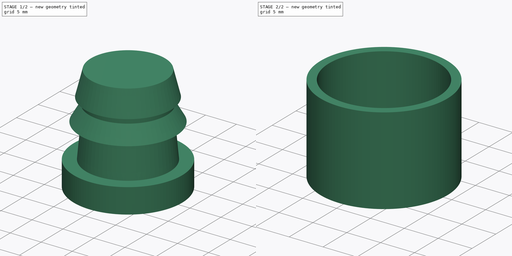
[diagram: build sequence overview — one tinted view per stage of 2, left to right]
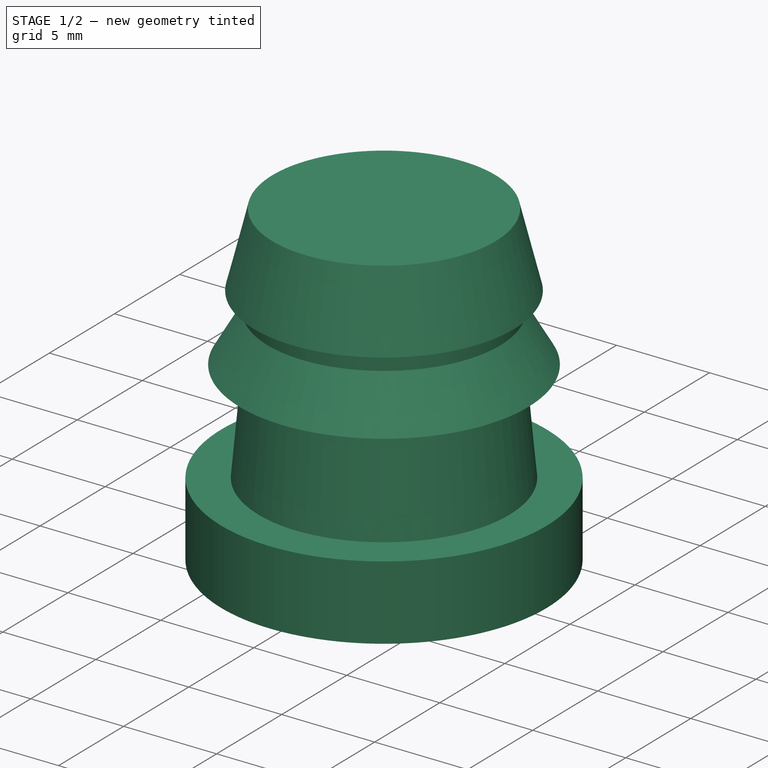
[diagram: stage 1 of 2 — iso view after this stage's code; geometry added in this stage tinted green]
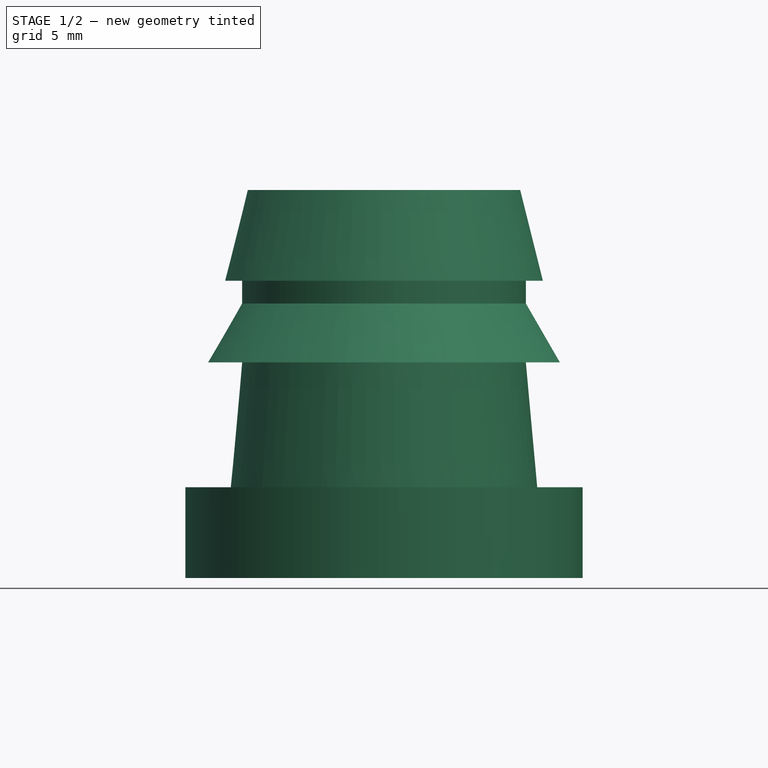
[diagram: stage 1 of 2 — front view after this stage's code; geometry added in this stage tinted green]
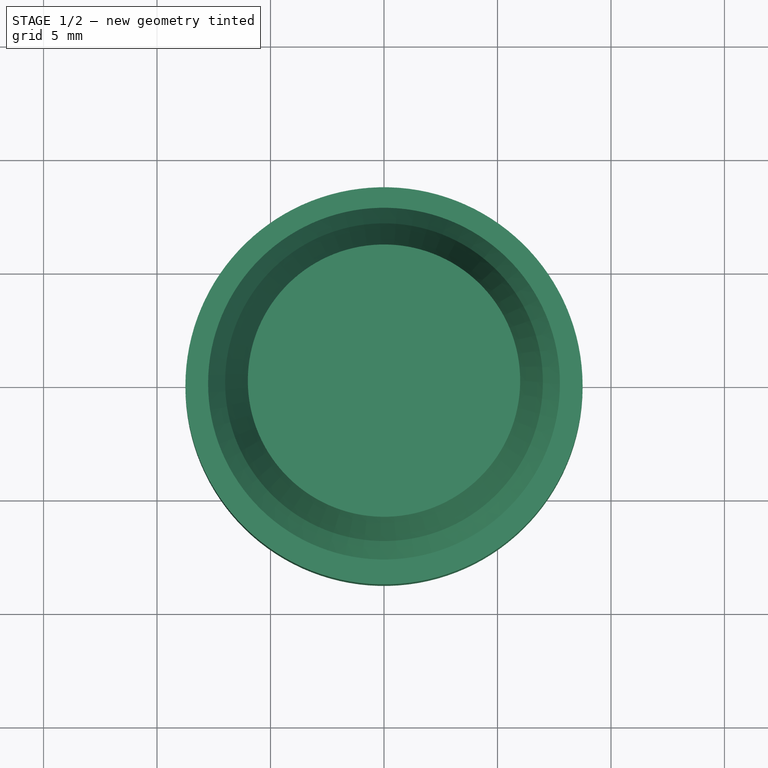
[diagram: stage 1 of 2 — top view after this stage's code; geometry added in this stage tinted green]
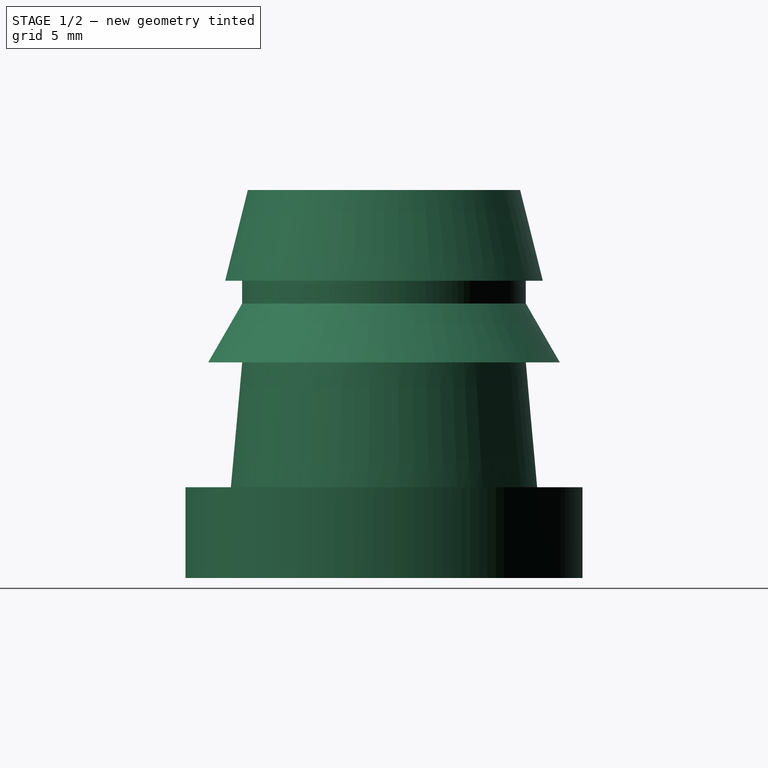
[diagram: stage 1 of 2 — right view after this stage's code; geometry added in this stage tinted green]
FCSTD DOCUMENT  (FreeCAD 2022.430R28641 (Git))
Label: zakljucek kapljicne cevi
License: All rights reserved
LicenseURL: http://en.wikipedia.org/wiki/All_rights_reserved
objects: Sketcher::SketchObject×3, PartDesign::Body×2, PartDesign::SubShapeBinder×2, PartDesign::Revolution×1, PartDesign::Pad×1
note: 13 computed .brp shape members not serialized (recipe doc carries the construction recipe); baked Part::Feature solids carry a one-line shape summary decoded from their .brp

FEATURE [Sketcher::SketchObject] Sketch
  FullyConstrained = true
  MapMode = 5
  Placement = pos=(0,0,0) rot=(1,0,0;1.5708rad)
  Support = -> [XZ_Plane]
  TreeRank = 13
  expr: Constraints[24] = 15.5 / 2
  expr: Constraints[28] = 14mm / 2
  expr: Constraints[2] = 17.5mm / 2
  expr: Constraints[30] = 12mm / 2
  sketch-geometry (11):
    g0: LineSegment StartX=8.75 StartY=0 StartZ=0 EndX=8.75 EndY=4 EndZ=0
    g1: LineSegment StartX=8.75 StartY=4 StartZ=0 EndX=6.75 EndY=4 EndZ=0
    g2: LineSegment StartX=6.75 StartY=4 StartZ=0 EndX=6.25 EndY=9.5 EndZ=0
    g3: LineSegment StartX=6.25 StartY=9.5 StartZ=0 EndX=7.75 EndY=9.5 EndZ=0
    g4: LineSegment StartX=7.75 StartY=9.5 StartZ=0 EndX=6.25 EndY=12.0981 EndZ=0
    g5: LineSegment StartX=6.25 StartY=12.0981 StartZ=0 EndX=6.25 EndY=13.0981 EndZ=0
    g6: LineSegment StartX=6.25 StartY=13.0981 StartZ=0 EndX=7 EndY=13.0981 EndZ=0
    g7: LineSegment StartX=7 StartY=13.0981 StartZ=0 EndX=6 EndY=17.0981 EndZ=0
    g8: LineSegment StartX=6 StartY=17.0981 StartZ=0 EndX=0 EndY=17.0981 EndZ=0
    g9: LineSegment StartX=0 StartY=17.0981 StartZ=0 EndX=0 EndY=0 EndZ=0
    g10: LineSegment StartX=0 StartY=0 StartZ=0 EndX=8.75 EndY=0 EndZ=0
  constraints (32):
    c: PointOnObject(g0,g-1)
    c: Vertical(g0)
    c: DistanceX(g0) = 8.75
    c: Coincident(g0,g1)
    c: Coincident(g1,g2)
    c: Coincident(g2,g3)
    c: Coincident(g3,g4)
    c: Coincident(g4,g5)
    c: Vertical(g5)
    c: Coincident(g5,g6)
    c: Coincident(g6,g7)
    c: Coincident(g7,g8)
    c: PointOnObject(g8,g-2)
    c: Horizontal(g8)
    c: Coincident(g8,g9)
    c: Coincident(g9,g-1)
    c: Coincident(g9,g10)
    c: Coincident(g10,g0)
    c: DistanceY(g0,g0) = 4
    c: DistanceY(g2,g2) = 5.5
    c: Horizontal(g1)
    c: Horizontal(g3)
    c: Horizontal(g6)
    c: DistanceX(g1,g1) = 2
    c: DistanceX(g3) = 7.75
    c: Vertical(g4,g2)
    c: Angle(g4) = 2.0944
    c: DistanceY(g5,g5) = 1
    c: DistanceX(g6) = 7
    c: DistanceY(g5,g7) = 4
    c: DistanceX(g7) = 6
    c: DistanceX(g3,g3) = 1.5
FEATURE [PartDesign::Revolution] Revolution
  Angle = 360
  Axis = (0,-2e-16,1)
  Base = (0,0,0)
  ClaimChildren = false
  Fit = 0
  FitJoin = 0
  InnerFit = 0
  InnerFitJoin = 0
  NewSolid = false
  Placement = pos=(0,0,0) rot=(1,0,0;1.5708rad)
  Profile = -> Sketch
  ReferenceAxis = -> Sketch [V_Axis]
  Refine = true
  Reversed = true
  Suppress = false
  TreeRank = 14
  _ProfileBasedVersion = 1
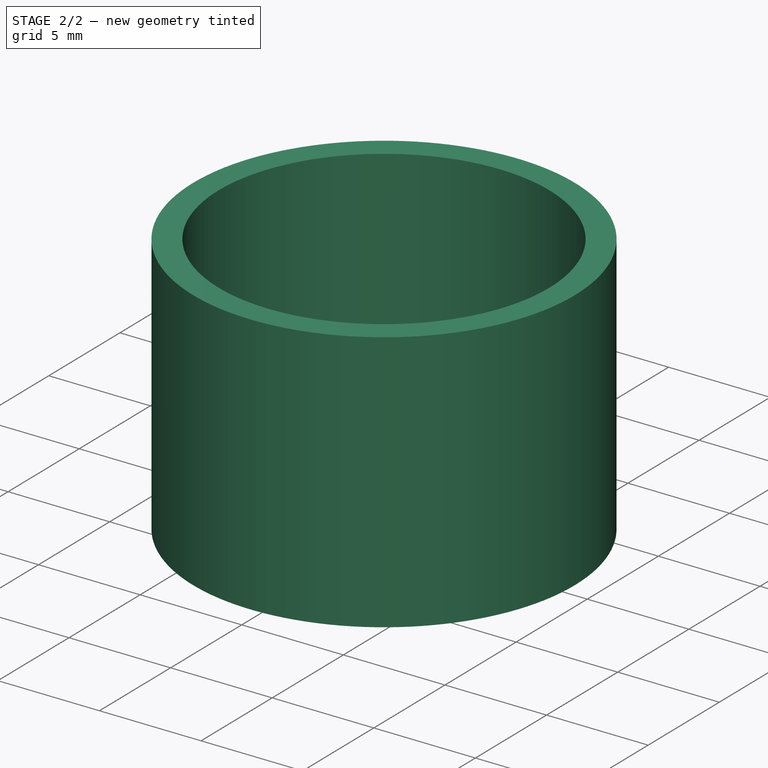
[diagram: stage 2 of 2 — iso view after this stage's code; geometry added in this stage tinted green]
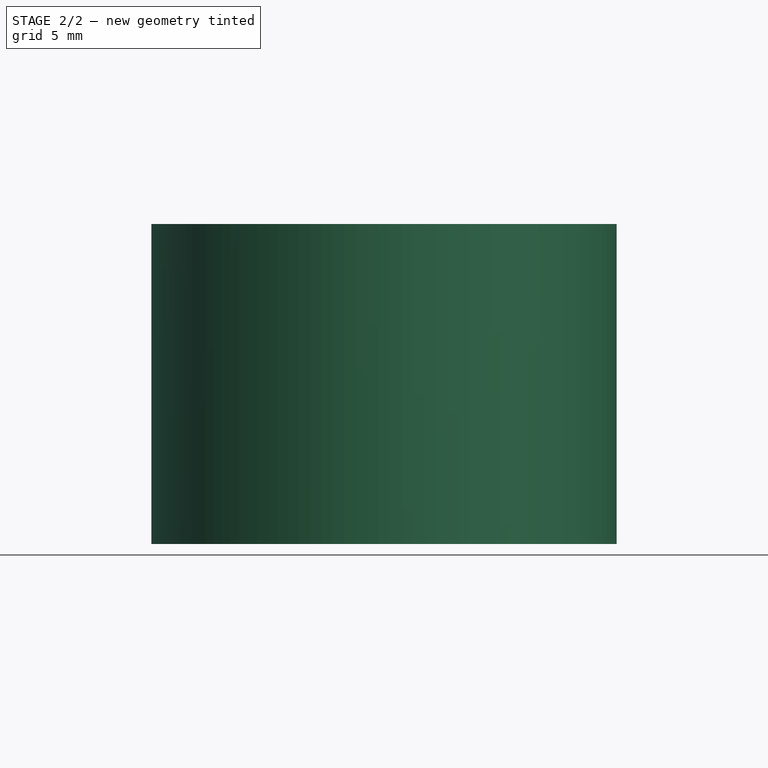
[diagram: stage 2 of 2 — front view after this stage's code; geometry added in this stage tinted green]
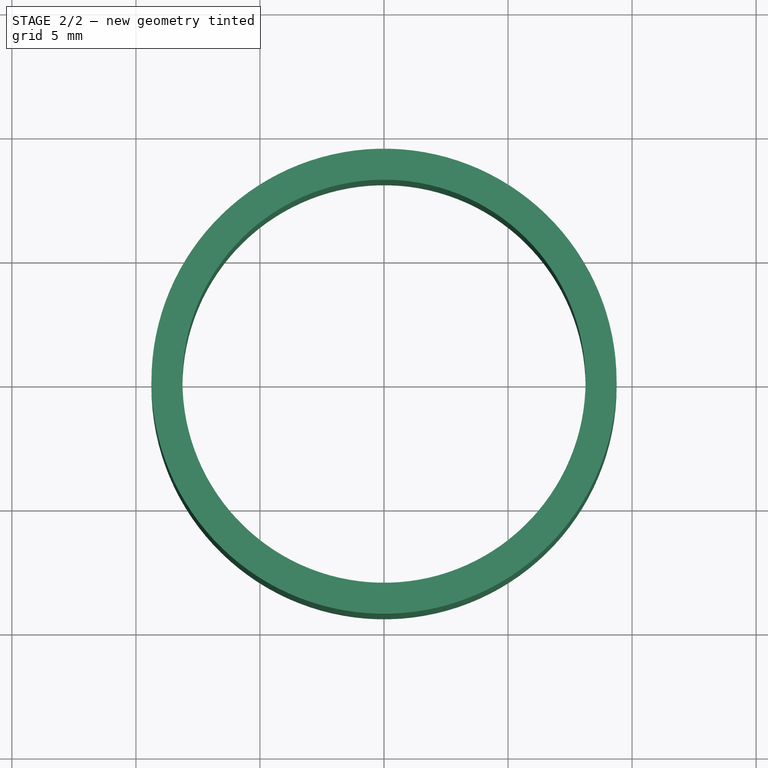
[diagram: stage 2 of 2 — top view after this stage's code; geometry added in this stage tinted green]
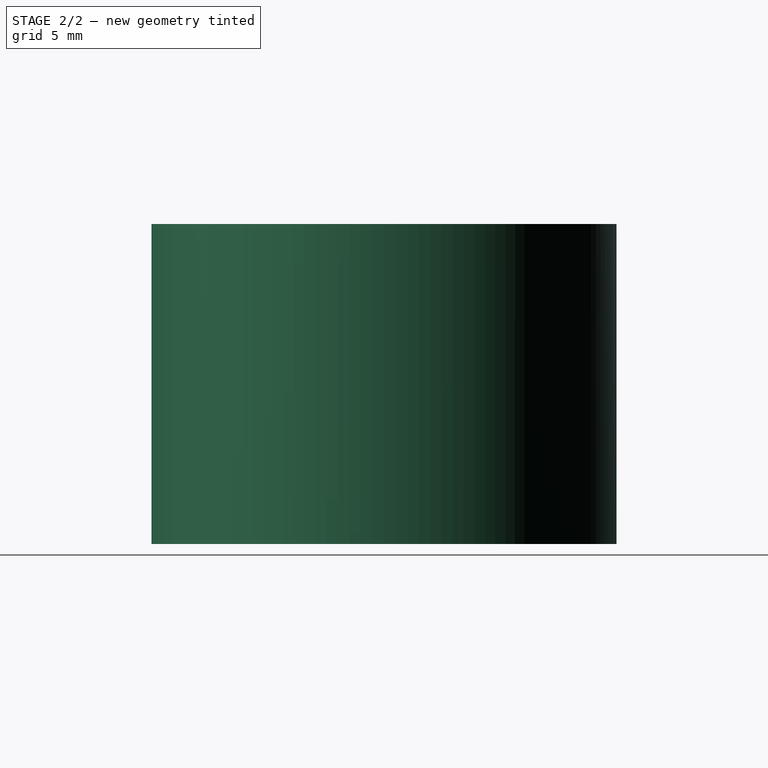
[diagram: stage 2 of 2 — right view after this stage's code; geometry added in this stage tinted green]
FEATURE [PartDesign::Body] Body
  AutoGroupSolids = false
  ClaimAllChildren = false
  ExportMode = 0
  Group = -> [Sketch,Revolution]
  Origin = -> Origin
  Tip = -> Revolution
  TreeRank = 42
  _ExportChildren = -> [Revolution]
  _GroupVersion = 1
FEATURE [PartDesign::SubShapeBinder] Binder  label="Binder(Revolution)"
  BindCopyOnChange = 0
  BindMode = 0
  ClaimChildren = false
  Context = -> Body001 [Binder.]
  FillStyle = 0
  Fuse = false
  MakeFace = true
  PartialLoad = false
  Relative = true
  Support = -> [Body[Revolution.Face9]]
  TreeRank = 27
  _Version = 8
FEATURE [PartDesign::SubShapeBinder] Binder001  label="Binder001(Revolution)"
  BindCopyOnChange = 0
  BindMode = 0
  ClaimChildren = false
  Context = -> Body001 [Binder001.]
  FillStyle = 0
  Fuse = false
  MakeFace = true
  PartialLoad = false
  Relative = true
  Support = -> [Body[Revolution.Face2]]
  TreeRank = 28
  _Version = 8
FEATURE [Sketcher::SketchObject] Sketch001
  ExternalGeometry = -> [Binder001]
  FullyConstrained = true
  MapMode = 5
  Placement = pos=(0,0,17.0981) rot=(0,0,1;0rad)
  Support = -> [Binder]
  TreeRank = 29
  sketch-geometry (4):
    g0: Circle CenterX=0 CenterY=-1e-16 CenterZ=0 NormalX=0 NormalY=0 NormalZ=1 AngleXU=0 Radius=8.125
    g1: Circle CenterX=0 CenterY=-1e-16 CenterZ=0 NormalX=0 NormalY=0 NormalZ=1 AngleXU=0 Radius=9.375
    g2: LineSegment [constr] StartX=8.125 StartY=-1e-16 StartZ=0 EndX=9.375 EndY=-1e-16 EndZ=0
    g3: GeomPoint [constr] X=8.75 Y=-1e-16 Z=0
  constraints (9):
    c: Coincident(g0,g-3)
    c: Coincident(g1,g0)
    c: PointOnObject(g2,g0)
    c: PointOnObject(g2,g1)
    c: Horizontal(g2,g2)
    c: Horizontal(g2,g0)
    c: DistanceX(g2,g2) = 1.25
    c: PointOnObject(g3,g-3)
    c: Symmetric(g2,g2,g3)
FEATURE [Sketcher::SketchObject] Sketch002
  ExternalGeometry = -> [Binder,Binder001]
  FullyConstrained = true
  MapMode = 5
  Placement = pos=(0,0,0) rot=(1,0,0;1.5708rad)
  Support = -> [XZ_Plane001]
  TreeRank = 30
  sketch-geometry (1):
    g0: LineSegment StartX=6 StartY=17.0981 StartZ=0 EndX=6 EndY=4.2 EndZ=0
  constraints (4):
    c: Coincident(g0,g-5)
    c: Vertical(g0)
    c: DistanceY(g-4,g0) = 0.2
    c: DistanceY(g0,g0) = 12.8981  'extrude_len'
FEATURE [PartDesign::Pad] Pad
  ClaimChildren = false
  Direction = (1,1,1)
  Fit = 0
  FitJoin = 0
  InnerFit = 0
  InnerFitJoin = 0
  InnerTaperAngle = 0
  InnerTaperAngleRev = 0
  Length = 12.8981
  Length2 = 100
  Linearize = true
  NewSolid = false
  Profile = -> Sketch001
  Refine = true
  Reversed = true
  Suppress = false
  TreeRank = 31
  Type = 0
  _ProfileBasedVersion = 1
  expr: Length = <<Sketch002>>.Constraints.extrude_len
FEATURE [PartDesign::Body] Body001
  AutoGroupSolids = false
  ClaimAllChildren = false
  ExportMode = 0
  Group = -> [Binder,Binder001,Sketch001,Sketch002,Pad]
  Origin = -> Origin001
  Tip = -> Pad
  TreeRank = 43
  _ExportChildren = -> [Binder,Binder001,Sketch002,Pad]
  _GroupVersion = 1
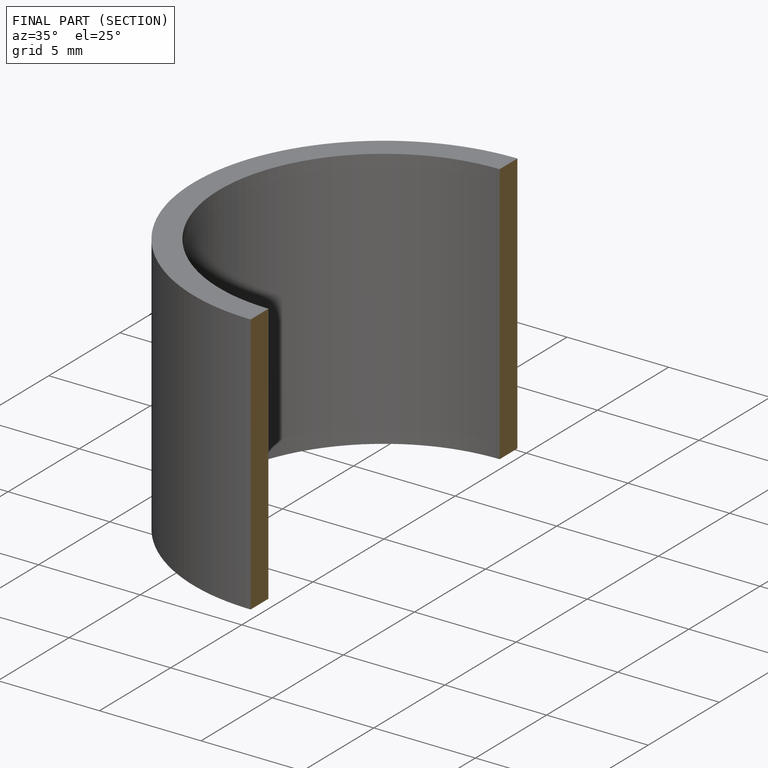
[diagram: finished part — half-section view (interior)]
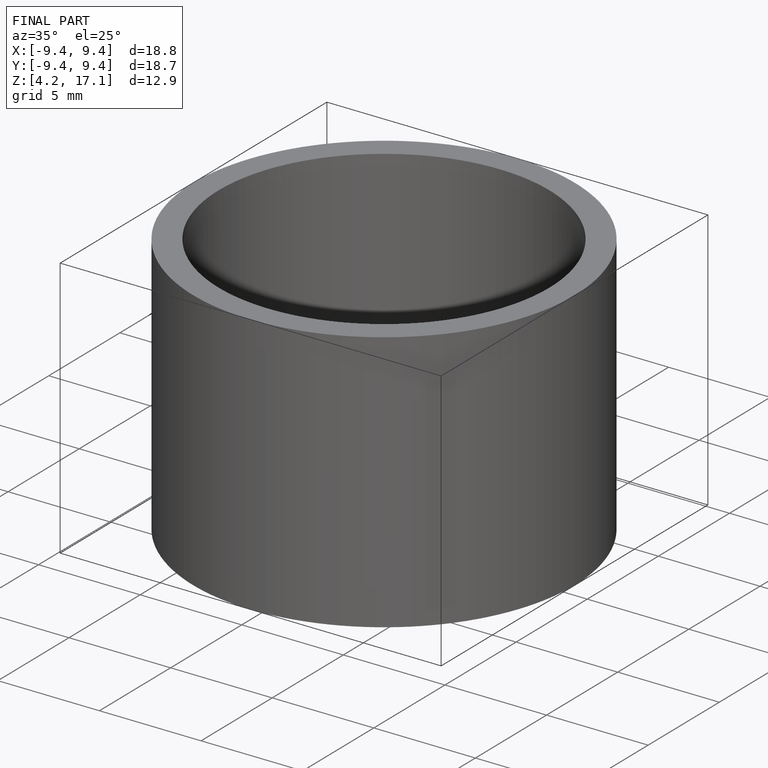
[diagram: finished part — iso view with bounding-box wireframe]
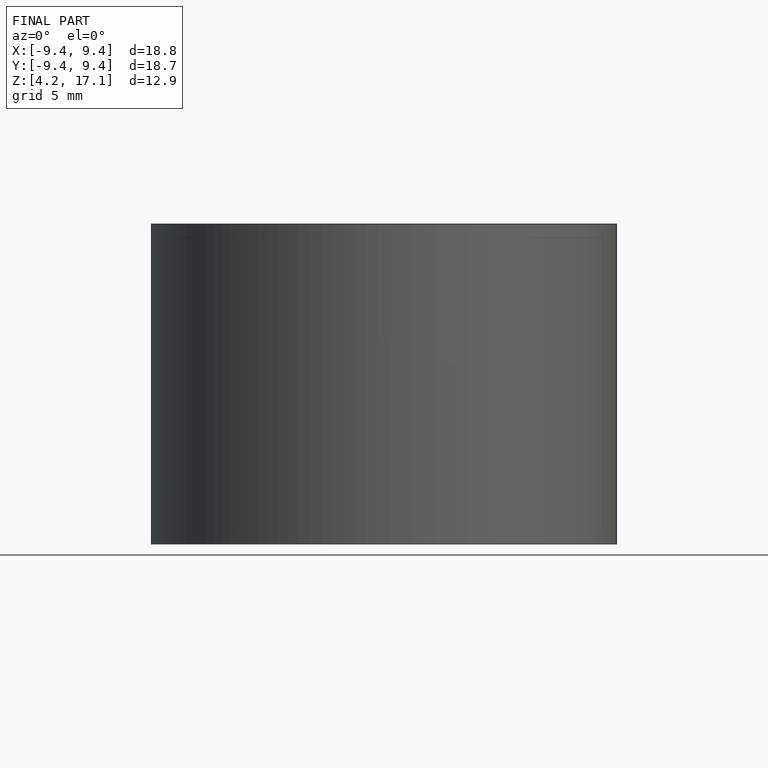
[diagram: finished part — front view with bounding-box wireframe]
